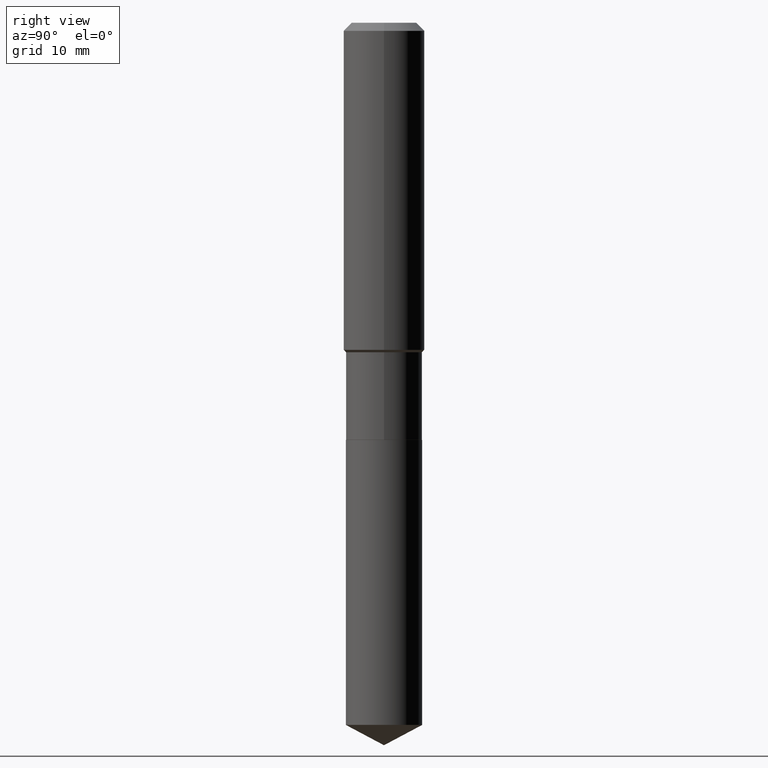
[diagram: clean part render]
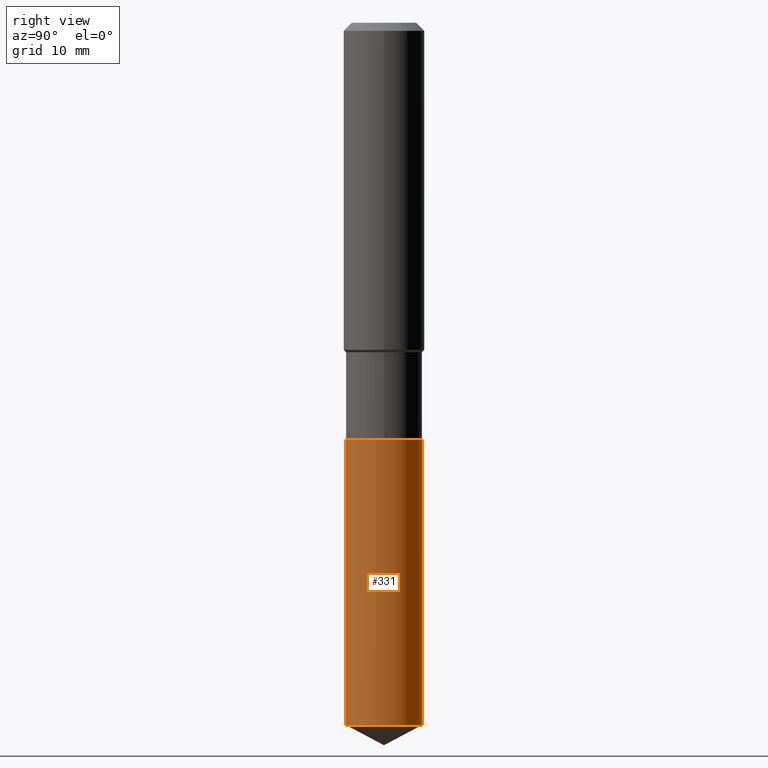
[diagram: same view with one face highlighted and labeled with its STEP entity id]
A machine part, right view. The second image highlights one B-rep face of the part: STEP entity #331.
In plain terms, the highlighted cylindrical surface (partial cylindrical patch) has radius 4.7003 mm, axis along (-0, 0, 1).
Its self-contained STEP definition (entity closure, byte-faithful):
#27 = VERTEX_POINT ( 'NONE', #373 ) ;
#31 = AXIS2_PLACEMENT_3D ( 'NONE', #279, #448, #96 ) ;
#43 = EDGE_CURVE ( 'NONE', #396, #339, #376, .T. ) ;
#60 = CIRCLE ( 'NONE', #31, 0.1850499999999999923 ) ;
#96 = DIRECTION ( 'NONE',  ( -6.982962677686265133E-15, -1.000000000000000000, 2.952551195530141356E-15 ) ) ;
#118 = ORIENTED_EDGE ( 'NONE', *, *, #43, .F. ) ;
#124 = CARTESIAN_POINT ( 'NONE',  ( -1.292197243505793786E-15, -0.1850500000000070422, -2.023599999999999177 ) ) ;
#148 = ORIENTED_EDGE ( 'NONE', *, *, #379, .T. ) ;
#151 = DIRECTION ( 'NONE',  ( -2.445569636956695496E-29, 3.491336943439341849E-15, 1.000000000000000000 ) ) ;
#163 = LINE ( 'NONE', #124, #181 ) ;
#165 = VERTEX_POINT ( 'NONE', #439 ) ;
#166 = DIRECTION ( 'NONE',  ( -2.445569636956695215E-29, 3.491336943439341455E-15, 1.000000000000000000 ) ) ;
#176 = DIRECTION ( 'NONE',  ( -2.445569636956695215E-29, 3.491336943439341455E-15, 1.000000000000000000 ) ) ;
#177 = CARTESIAN_POINT ( 'NONE',  ( 4.948650676196241876E-29, -7.065361637282988500E-15, -2.023599999999999621 ) ) ;
#181 = VECTOR ( 'NONE', #166, 39.37007874015748143 ) ;
#183 = CARTESIAN_POINT ( 'NONE',  ( 4.948650676196241876E-29, -7.065361637282988500E-15, -2.023599999999999621 ) ) ;
#193 = ORIENTED_EDGE ( 'NONE', *, *, #260, .F. ) ;
#198 = CARTESIAN_POINT ( 'NONE',  ( 1.314859332524148564E-15, 0.1850499999999929146, -2.023600000000000065 ) ) ;
#250 = CARTESIAN_POINT ( 'NONE',  ( 1.314859332524114446E-15, 0.1850499999999929146, -2.023600000000000065 ) ) ;
#251 = DIRECTION ( 'NONE',  ( -2.445569636956695496E-29, 3.491336943439341849E-15, 1.000000000000000000 ) ) ;
#254 = ORIENTED_EDGE ( 'NONE', *, *, #445, .T. ) ;
#259 = CYLINDRICAL_SURFACE ( 'NONE', #364, 0.1850499999999999923 ) ;
#260 = EDGE_CURVE ( 'NONE', #165, #396, #163, .T. ) ;
#279 = CARTESIAN_POINT ( 'NONE',  ( 8.328200891436510860E-29, -1.189006519115920391E-14, -3.405507169671043499 ) ) ;
#329 = AXIS2_PLACEMENT_3D ( 'NONE', #177, #251, #411 ) ;
#331 = ADVANCED_FACE ( 'NONE', ( #459 ), #259, .T. ) ;
#339 = VERTEX_POINT ( 'NONE', #198 ) ;
#364 = AXIS2_PLACEMENT_3D ( 'NONE', #183, #151, #468 ) ;
#369 = VECTOR ( 'NONE', #176, 39.37007874015748143 ) ;
#370 = LINE ( 'NONE', #250, #369 ) ;
#373 = CARTESIAN_POINT ( 'NONE',  ( 1.314859332524147972E-15, 0.1850499999999881129, -3.405507169671043943 ) ) ;
#376 = CIRCLE ( 'NONE', #329, 0.1850499999999999923 ) ;
#379 = EDGE_CURVE ( 'NONE', #165, #27, #60, .T. ) ;
#396 = VERTEX_POINT ( 'NONE', #401 ) ;
#401 = CARTESIAN_POINT ( 'NONE',  ( -1.292197243505793786E-15, -0.1850500000000070422, -2.023599999999999177 ) ) ;
#411 = DIRECTION ( 'NONE',  ( -6.982962677686265133E-15, -1.000000000000000000, 2.952551195530141356E-15 ) ) ;
#439 = CARTESIAN_POINT ( 'NONE',  ( -1.292197243505760062E-15, -0.1850500000000118439, -3.405507169671043055 ) ) ;
#445 = EDGE_CURVE ( 'NONE', #27, #339, #370, .T. ) ;
#448 = DIRECTION ( 'NONE',  ( -2.445569636956695496E-29, 3.491336943439341849E-15, 1.000000000000000000 ) ) ;
#449 = EDGE_LOOP ( 'NONE', ( #148, #254, #118, #193 ) ) ;
#459 = FACE_OUTER_BOUND ( 'NONE', #449, .T. ) ;
#468 = DIRECTION ( 'NONE',  ( -6.982962677686265133E-15, -1.000000000000000000, 2.952551195530141356E-15 ) ) ;